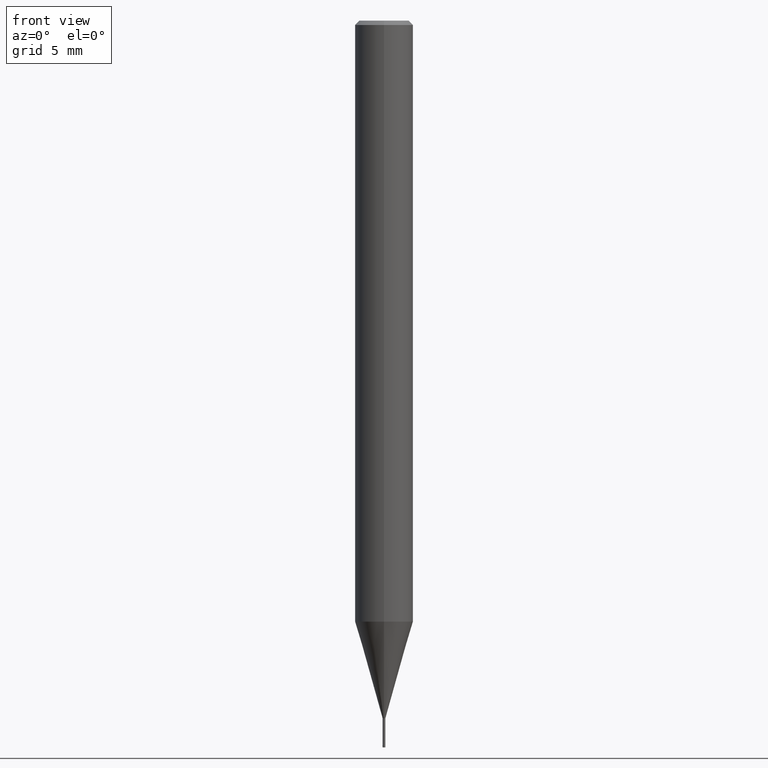
[diagram: clean part render]
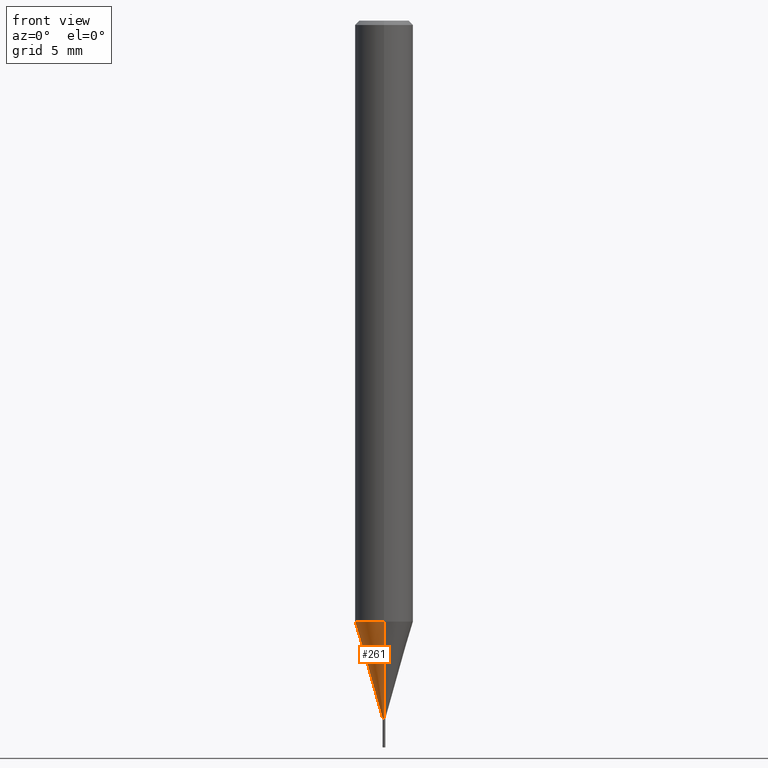
[diagram: same view with one face highlighted and labeled with its STEP entity id]
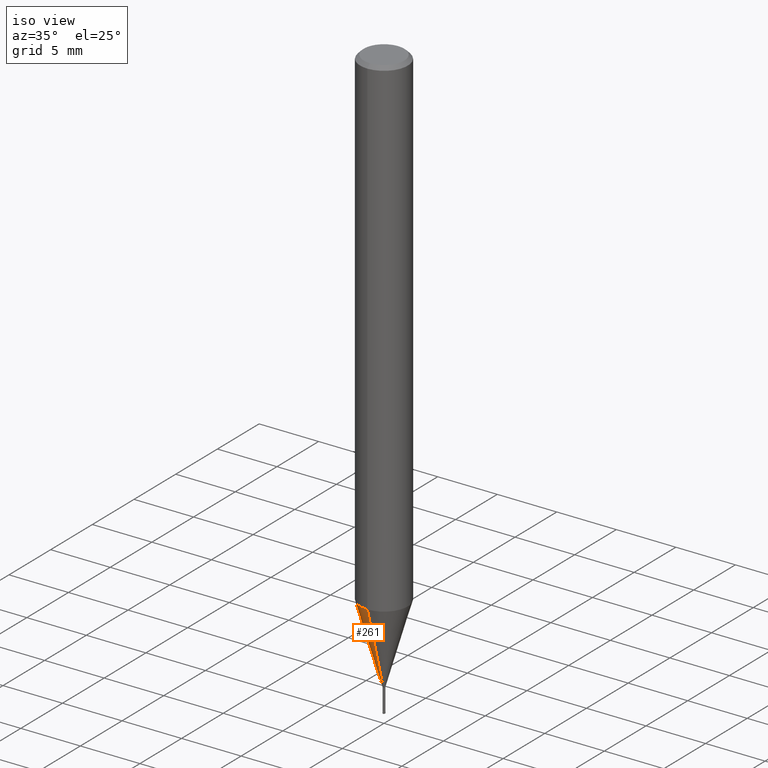
[diagram: same view with one face highlighted and labeled with its STEP entity id]
A machine part, front view. The second image highlights one B-rep face of the part: STEP entity #261.
A second angle (iso view) of the same face is appended — the face is thin or edge-on in the first view.
In plain terms, the highlighted conical surface has half-angle 16.001 deg.
Its self-contained STEP definition (entity closure, byte-faithful):
#161=VERTEX_POINT('',#398);
#205=VERTEX_POINT('',#450);
#217=VERTEX_POINT('',#463);
#219=VERTEX_POINT('',#465);
#221=EDGE_CURVE('',#217,#205,#467,.T.);
#261=ADVANCED_FACE('',(#510),#511,.T.);
#299=EDGE_CURVE('',#161,#217,#555,.T.);
#301=EDGE_CURVE('',#219,#205,#557,.T.);
#317=EDGE_CURVE('',#219,#161,#578,.T.);
#398=CARTESIAN_POINT('',(2.44915147732706E-016,-1.99995,-41.338));
#450=CARTESIAN_POINT('',(0.0,0.09245,-47.99));
#463=CARTESIAN_POINT('',(0.0,1.99995,-41.338));
#465=CARTESIAN_POINT('',(1.13214857410879E-017,-0.09245,-47.99));
#467=LINE('',#744,#745);
#510=FACE_OUTER_BOUND('',#799,.T.);
#511=CONICAL_SURFACE('',#800,1.0462,0.279262361421134);
#555=CIRCLE('',#857,1.99995);
#557=CIRCLE('',#860,0.09245);
#578=LINE('',#884,#885);
#744=CARTESIAN_POINT('',(-1.28118316736897E-016,1.0462,-44.664));
#745=VECTOR('',#1064,1.0);
#799=EDGE_LOOP('',(#1106,#1107,#1108,#1109));
#800=AXIS2_PLACEMENT_3D('',#1110,#1111,#1112);
#857=AXIS2_PLACEMENT_3D('',#1170,#1171,#1172);
#860=AXIS2_PLACEMENT_3D('',#1173,#1174,#1175);
#884=CARTESIAN_POINT('',(1.28118316736897E-016,-1.0462,-44.664));
#885=VECTOR('',#1209,1.0);
#1064=DIRECTION('',(3.37558653544073E-017,-0.275646661876649,-0.961259027419904));
#1106=ORIENTED_EDGE('',*,*,#221,.T.);
#1107=ORIENTED_EDGE('',*,*,#301,.F.);
#1108=ORIENTED_EDGE('',*,*,#317,.T.);
#1109=ORIENTED_EDGE('',*,*,#299,.T.);
#1110=CARTESIAN_POINT('',(0.0,0.0,-44.664));
#1111=DIRECTION('',(-0.0,-0.0,1.0));
#1112=DIRECTION('',(0.0,1.0,0.0));
#1170=CARTESIAN_POINT('',(0.0,0.0,-41.338));
#1171=DIRECTION('',(0.0,0.0,-1.0));
#1172=DIRECTION('',(0.0,1.0,0.0));
#1173=CARTESIAN_POINT('',(0.0,0.0,-47.99));
#1174=DIRECTION('',(0.0,0.0,-1.0));
#1175=DIRECTION('',(0.0,1.0,0.0));
#1209=DIRECTION('',(3.37558653544073E-017,-0.275646661876649,0.961259027419904));